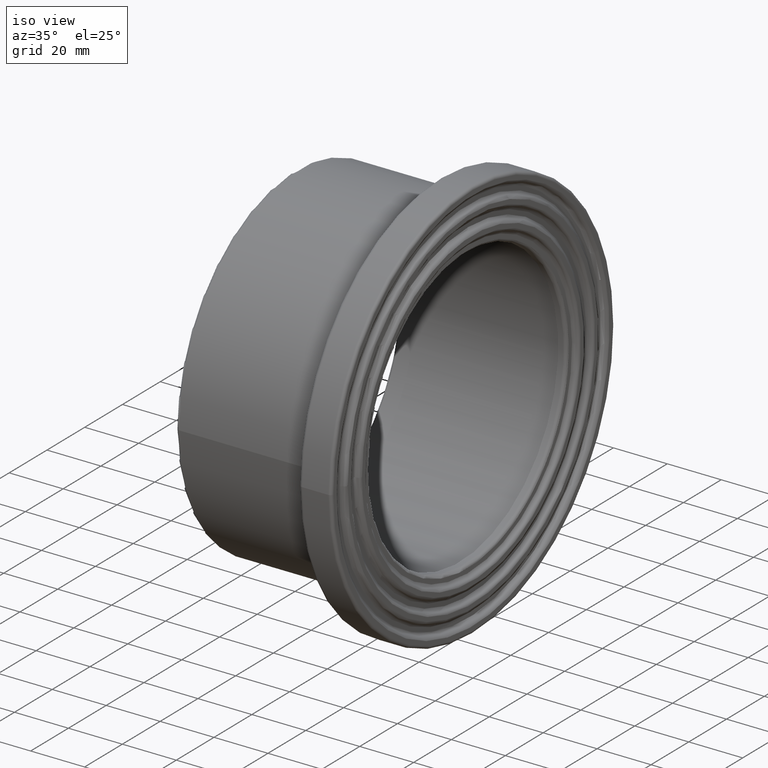
[diagram: clean part render]
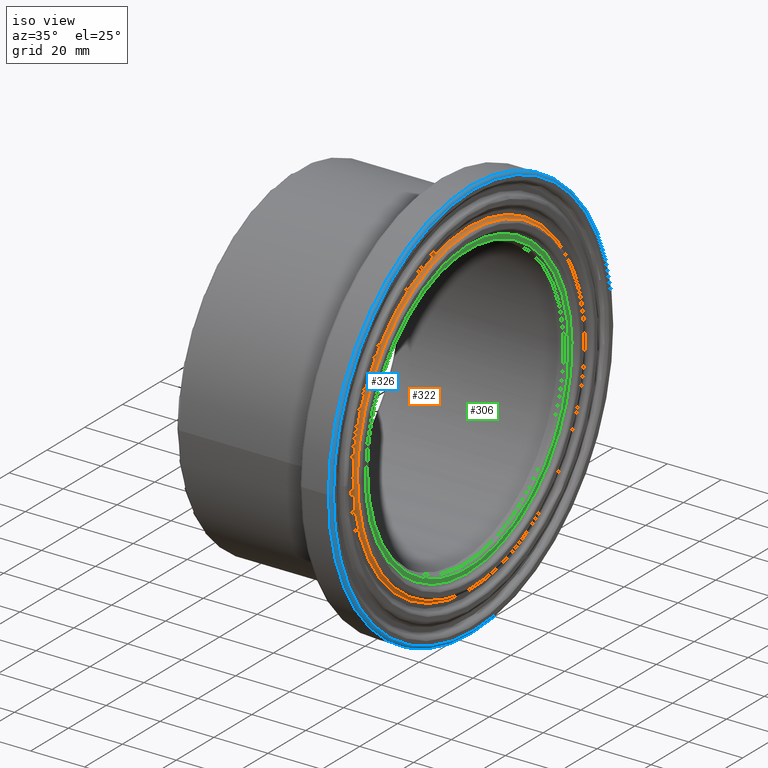
[diagram: same view with three faces highlighted in distinct colors, each labeled with its STEP entity id]
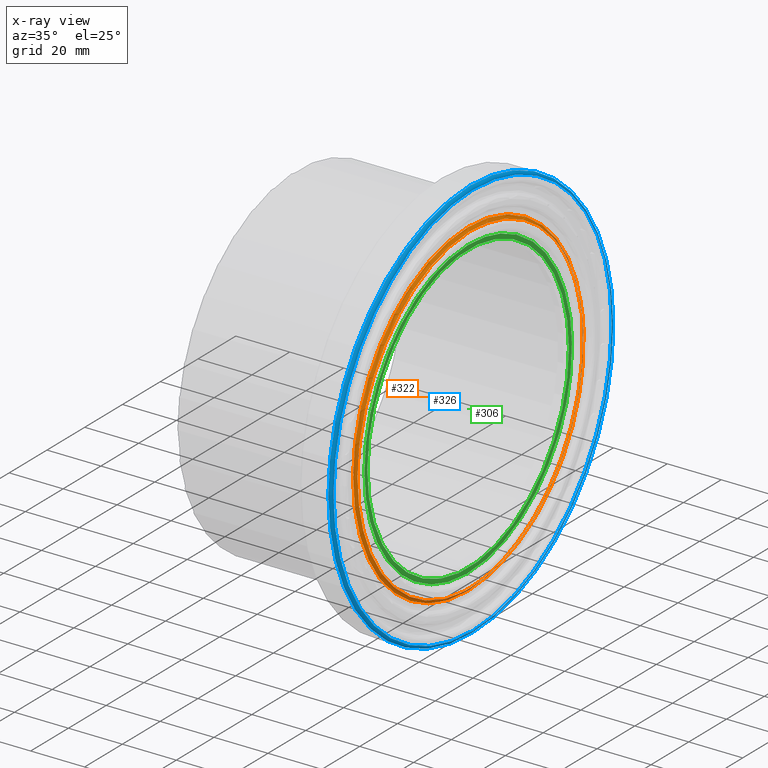
[diagram: x-ray of the same camera — body ghosted, the three highlighted faces saturated]
A machine part, iso view with three faces highlighted in distinct colors.
The next image is the same camera in x-ray (body ghosted, the three faces saturated) — at least one of them is partly hidden behind the body in this view.
Their STEP definitions:

[orange] entity #322 — the highlighted toroidal blend (fillet) surface has major radius 60.9333 mm and minor (blend) radius 1.1 mm.
#31=B_SPLINE_CURVE_WITH_KNOTS('',3,(#1638,#1639,#1640,#1641,#1642,#1643,
#1644,#1645,#1646,#1647,#1648,#1649,#1650,#1651,#1652,#1653,#1654,#1655,
#1656,#1657,#1658,#1659,#1660,#1661,#1662,#1663,#1664,#1665,#1666,#1667,
#1668,#1669,#1670,#1671,#1672),.UNSPECIFIED.,.T.,.F.,(4,1,1,1,1,1,1,1,1,
1,1,1,1,1,1,1,1,1,1,1,1,1,1,1,1,1,1,1,1,1,1,1,4),(-55.0567499125496,-53.7458749146318,
-53.0904374156728,-52.4349999167139,-51.1241249187961,-49.8132499208782,
-48.5023749229604,-47.8469374240014,-47.1914999250425,-44.5697499292068,
-43.9143124302479,-43.258874931289,-41.9479999333711,-40.6371249354533,
-39.3262499375354,-38.4523332722569,-37.5784166069783,-34.082749945864,
-33.2088332805855,-32.3349166153069,-31.4609999500283,-30.5870832847498,
-30.1501249521105,-28.8392499541927,-27.5283749562748,-26.8729374573159,
-26.217499958357,-23.5957499625213,-22.9403124635623,-22.2848749646034,
-20.9739999666856,-19.6631249687677,-18.3522499708499),.UNSPECIFIED.);
#56=FACE_BOUND('',#125,.T.);
#83=FACE_OUTER_BOUND('',#124,.T.);
#124=EDGE_LOOP('',(#271));
#125=EDGE_LOOP('',(#272));
#161=CIRCLE('',#365,60.9333333333333);
#187=VERTEX_POINT('',#1636);
#188=VERTEX_POINT('',#1674);
#219=EDGE_CURVE('',#187,#187,#31,.T.);
#220=EDGE_CURVE('',#188,#188,#161,.T.);
#271=ORIENTED_EDGE('',*,*,#220,.T.);
#272=ORIENTED_EDGE('',*,*,#219,.F.);
#300=TOROIDAL_SURFACE('',#364,60.9333333333333,1.1);
#322=ADVANCED_FACE('',(#83,#56),#300,.F.);
#364=AXIS2_PLACEMENT_3D('',#1673,#441,#442);
#365=AXIS2_PLACEMENT_3D('',#1675,#443,#444);
#441=DIRECTION('center_axis',(-1.,0.,0.));
#442=DIRECTION('ref_axis',(0.,0.,1.));
#443=DIRECTION('center_axis',(1.,0.,0.));
#444=DIRECTION('ref_axis',(0.,1.,6.12323399573677E-17));
#1636=CARTESIAN_POINT('',(65.1,-59.8516482275858,0.0485893143913561));
#1638=CARTESIAN_POINT('Ctrl Pts',(65.1,-59.8527948352399,0.0490359634290293));
#1639=CARTESIAN_POINT('Ctrl Pts',(65.1,-59.8544050161196,-4.40801421156486));
#1640=CARTESIAN_POINT('Ctrl Pts',(65.1,-59.1144700829757,-11.1233094084641));
#1641=CARTESIAN_POINT('Ctrl Pts',(65.1,-56.6152457916358,-19.7892354430366));
#1642=CARTESIAN_POINT('Ctrl Pts',(65.1,-53.2244482022848,-28.0184754255928));
#1643=CARTESIAN_POINT('Ctrl Pts',(65.1,-47.1861714872389,-37.6285881209416));
#1644=CARTESIAN_POINT('Ctrl Pts',(65.1000000000001,-37.6999187698267,-47.136505750598));
#1645=CARTESIAN_POINT('Ctrl Pts',(65.1,-28.0900730724228,-53.1822522485152));
#1646=CARTESIAN_POINT('Ctrl Pts',(65.1000000000001,-19.8630923269918,-56.591302804533));
#1647=CARTESIAN_POINT('Ctrl Pts',(65.1,-6.89311269236396,-60.3434714097869));
#1648=CARTESIAN_POINT('Ctrl Pts',(65.1,6.83183890570958,-60.3579588330497));
#1649=CARTESIAN_POINT('Ctrl Pts',(65.1,19.8134843525914,-56.6066247643753));
#1650=CARTESIAN_POINT('Ctrl Pts',(65.1,28.0421853122834,-53.2112543682417));
#1651=CARTESIAN_POINT('Ctrl Pts',(65.1,37.6528517838595,-47.1690075548913));
#1652=CARTESIAN_POINT('Ctrl Pts',(65.1,47.1512927906741,-37.6751458099835));
#1653=CARTESIAN_POINT('Ctrl Pts',(65.1,53.5982461002567,-27.432128344508));
#1654=CARTESIAN_POINT('Ctrl Pts',(65.1,57.3890096620262,-17.7436007745848));
#1655=CARTESIAN_POINT('Ctrl Pts',(65.1,61.4427968557652,-0.135535273436261));
#1656=CARTESIAN_POINT('Ctrl Pts',(65.1,58.6554076937819,18.1849303240558));
#1657=CARTESIAN_POINT('Ctrl Pts',(65.1,49.7049267378983,33.7396288510743));
#1658=CARTESIAN_POINT('Ctrl Pts',(65.1,44.0832199330708,40.8152459019523));
#1659=CARTESIAN_POINT('Ctrl Pts',(65.1,37.5551810291602,46.8857811948498));
#1660=CARTESIAN_POINT('Ctrl Pts',(65.1,31.3563670403301,51.1372468647267));
#1661=CARTESIAN_POINT('Ctrl Pts',(65.1,23.413853412497,55.3424216052866));
#1662=CARTESIAN_POINT('Ctrl Pts',(65.1,13.5582972925259,58.8161481941671));
#1663=CARTESIAN_POINT('Ctrl Pts',(65.1,2.2872211829282,60.1027314252567));
#1664=CARTESIAN_POINT('Ctrl Pts',(65.1000000000001,-6.60458146894338,59.6097868273747));
#1665=CARTESIAN_POINT('Ctrl Pts',(65.1,-19.9319387409135,57.3807106714879));
#1666=CARTESIAN_POINT('Ctrl Pts',(65.1,-32.3027206852695,51.4321499563023));
#1667=CARTESIAN_POINT('Ctrl Pts',(65.1,-42.3740817647239,42.4449401551265));
#1668=CARTESIAN_POINT('Ctrl Pts',(65.1000000000001,-48.3223940226196,35.8112641073742));
#1669=CARTESIAN_POINT('Ctrl Pts',(65.1,-54.3719200653184,26.207087180131));
#1670=CARTESIAN_POINT('Ctrl Pts',(65.1,-58.8140927691342,13.5353028172733));
#1671=CARTESIAN_POINT('Ctrl Pts',(65.1,-59.8511846543603,4.50608613842292));
#1672=CARTESIAN_POINT('Ctrl Pts',(65.1,-59.8527948352399,0.0490359634290293));
#1673=CARTESIAN_POINT('Origin',(65.3,0.,0.));
#1674=CARTESIAN_POINT('',(64.2,-60.9333333333333,-1.11932717442068E-14));
#1675=CARTESIAN_POINT('Origin',(64.2,0.,0.));

[blue] entity #326 — the highlighted toroidal blend (fillet) surface has major radius 73.9 mm and minor (blend) radius 1.1 mm.
#59=FACE_BOUND('',#132,.T.);
#87=FACE_OUTER_BOUND('',#131,.T.);
#131=EDGE_LOOP('',(#281));
#132=EDGE_LOOP('',(#282));
#151=CIRCLE('',#347,73.9);
#163=CIRCLE('',#370,75.);
#177=VERTEX_POINT('',#1099);
#191=VERTEX_POINT('',#2011);
#207=EDGE_CURVE('',#177,#177,#151,.T.);
#224=EDGE_CURVE('',#191,#191,#163,.T.);
#281=ORIENTED_EDGE('',*,*,#207,.T.);
#282=ORIENTED_EDGE('',*,*,#224,.T.);
#302=TOROIDAL_SURFACE('',#369,73.9,1.1);
#326=ADVANCED_FACE('',(#87,#59),#302,.T.);
#347=AXIS2_PLACEMENT_3D('',#1100,#407,#408);
#369=AXIS2_PLACEMENT_3D('',#2010,#451,#452);
#370=AXIS2_PLACEMENT_3D('',#2012,#453,#454);
#407=DIRECTION('center_axis',(-1.,0.,0.));
#408=DIRECTION('ref_axis',(0.,1.,6.12323399573677E-17));
#451=DIRECTION('center_axis',(-1.,0.,0.));
#452=DIRECTION('ref_axis',(0.,0.,1.));
#453=DIRECTION('center_axis',(1.,0.,0.));
#454=DIRECTION('ref_axis',(0.,1.,6.12323399573677E-17));
#1099=CARTESIAN_POINT('',(66.,-73.9,4.52506992284947E-15));
#1100=CARTESIAN_POINT('Origin',(66.,0.,0.));
#2010=CARTESIAN_POINT('Origin',(64.9,0.,0.));
#2011=CARTESIAN_POINT('',(64.9,-75.,-1.37772764904077E-14));
#2012=CARTESIAN_POINT('Origin',(64.9,0.,0.));

[green] entity #306 — the highlighted planar face has unit normal (1, 0, 0).
#24=B_SPLINE_CURVE_WITH_KNOTS('',3,(#483,#484,#485,#486,#487,#488,#489,
#490,#491,#492,#493,#494,#495,#496,#497,#498,#499,#500,#501,#502,#503,#504,
#505,#506,#507,#508,#509,#510,#511,#512,#513,#514,#515,#516),
 .UNSPECIFIED.,.T.,.F.,(4,1,1,1,1,1,1,1,1,1,1,1,1,1,1,1,1,1,1,1,1,1,1,1,
1,1,1,1,1,1,1,4),(-51.5046513197908,-50.278350097891,-49.6651994869411,
-49.0520488759913,-47.8257476540915,-46.5994464321917,-45.3731452102919,
-44.759994599342,-44.1468439883921,-41.6942415445926,-41.0810909336427,
-40.4679403226928,-39.241639100793,-38.0153378788932,-36.7890366569934,
-35.9715025090603,-35.1539683611271,-31.8838317693943,-31.0662976214611,
-30.2487634735279,-29.4312293255948,-28.6136951776616,-26.9786268817952,
-25.7523256598954,-25.1391750489455,-24.5260244379956,-22.0734219941961,
-21.4602713832462,-20.8471207722963,-19.6208195503965,-18.3945183284967,
-17.1682171065969),.UNSPECIFIED.);
#34=PLANE('',#338);
#44=FACE_BOUND('',#97,.T.);
#67=FACE_OUTER_BOUND('',#96,.T.);
#96=EDGE_LOOP('',(#231));
#97=EDGE_LOOP('',(#232));
#146=CIRCLE('',#337,53.35);
#169=VERTEX_POINT('',#479);
#170=VERTEX_POINT('',#482);
#197=EDGE_CURVE('',#169,#169,#146,.T.);
#198=EDGE_CURVE('',#170,#170,#24,.T.);
#231=ORIENTED_EDGE('',*,*,#198,.F.);
#232=ORIENTED_EDGE('',*,*,#197,.F.);
#306=ADVANCED_FACE('',(#67,#44),#34,.T.);
#337=AXIS2_PLACEMENT_3D('',#480,#387,#388);
#338=AXIS2_PLACEMENT_3D('',#481,#389,#390);
#387=DIRECTION('center_axis',(1.,0.,0.));
#388=DIRECTION('ref_axis',(0.,1.,6.12323399573676E-17));
#389=DIRECTION('center_axis',(1.,0.,0.));
#390=DIRECTION('ref_axis',(0.,0.,-1.));
#479=CARTESIAN_POINT('',(64.2,-53.35,-9.8002360101767E-15));
#480=CARTESIAN_POINT('Origin',(64.2,0.,0.));
#481=CARTESIAN_POINT('Origin',(64.2,-56.0416666666667,0.));
#482=CARTESIAN_POINT('',(64.2,-54.9783177842044,-0.0446330025426508));
#483=CARTESIAN_POINT('Ctrl Pts',(64.2,-54.9793734606414,-0.0450734457021685));
#484=CARTESIAN_POINT('Ctrl Pts',(64.2,-54.9809711570646,4.04926762412066));
#485=CARTESIAN_POINT('Ctrl Pts',(64.2,-54.3010433166687,10.2177449876935));
#486=CARTESIAN_POINT('Ctrl Pts',(64.2,-52.005553239568,18.1778499051097));
#487=CARTESIAN_POINT('Ctrl Pts',(64.2,-48.8906125400088,25.7371758185972));
#488=CARTESIAN_POINT('Ctrl Pts',(64.2,-43.3440768055812,34.5647872167514));
#489=CARTESIAN_POINT('Ctrl Pts',(64.2,-34.6303711580848,43.298394413217));
#490=CARTESIAN_POINT('Ctrl Pts',(64.2,-25.8027079089795,48.851999841439));
#491=CARTESIAN_POINT('Ctrl Pts',(64.2,-18.2458194225107,51.9834433531986));
#492=CARTESIAN_POINT('Ctrl Pts',(64.2,-6.33141472798988,55.4301276189085));
#493=CARTESIAN_POINT('Ctrl Pts',(64.2,6.27478207801565,55.4432692003274));
#494=CARTESIAN_POINT('Ctrl Pts',(64.2,18.2003759221842,51.9975804394831));
#495=CARTESIAN_POINT('Ctrl Pts',(64.2,25.7587168582668,48.8785892022821));
#496=CARTESIAN_POINT('Ctrl Pts',(64.2,34.587212824871,43.3281692708032));
#497=CARTESIAN_POINT('Ctrl Pts',(64.2,43.311919982287,34.6076765696006));
#498=CARTESIAN_POINT('Ctrl Pts',(64.2,49.2341960842885,25.1984012761464));
#499=CARTESIAN_POINT('Ctrl Pts',(64.2,52.7161048055527,16.2988892667887));
#500=CARTESIAN_POINT('Ctrl Pts',(64.2,56.4404142254909,0.124431767931074));
#501=CARTESIAN_POINT('Ctrl Pts',(64.2,53.8778619852006,-16.7043693962369));
#502=CARTESIAN_POINT('Ctrl Pts',(64.2,45.6590688165289,-30.9922912598041));
#503=CARTESIAN_POINT('Ctrl Pts',(64.2,40.49058994054,-37.4921086546513));
#504=CARTESIAN_POINT('Ctrl Pts',(64.2,34.503278740004,-43.067904909472));
#505=CARTESIAN_POINT('Ctrl Pts',(64.2,25.369138348796,-49.3176869061446));
#506=CARTESIAN_POINT('Ctrl Pts',(64.2,13.8213710248361,-53.8704016943154));
#507=CARTESIAN_POINT('Ctrl Pts',(64.2,2.10482127106562,-55.2086261914118));
#508=CARTESIAN_POINT('Ctrl Pts',(64.2,-6.06776286328749,-54.7563382946638));
#509=CARTESIAN_POINT('Ctrl Pts',(64.2000000000001,-18.3081353513836,-52.7080541483023));
#510=CARTESIAN_POINT('Ctrl Pts',(64.1999999999999,-29.6729512426054,-47.2445424944287));
#511=CARTESIAN_POINT('Ctrl Pts',(64.2,-38.9236275991185,-38.9889711813207));
#512=CARTESIAN_POINT('Ctrl Pts',(64.2,-44.3879370793456,-32.8953839655401));
#513=CARTESIAN_POINT('Ctrl Pts',(64.2,-49.9446809157273,-24.0731836835578));
#514=CARTESIAN_POINT('Ctrl Pts',(64.2,-54.0253351224723,-12.4331657092392));
#515=CARTESIAN_POINT('Ctrl Pts',(64.2,-54.9777757642182,-4.139414515525));
#516=CARTESIAN_POINT('Ctrl Pts',(64.2,-54.9793734606414,-0.0450734457021685));